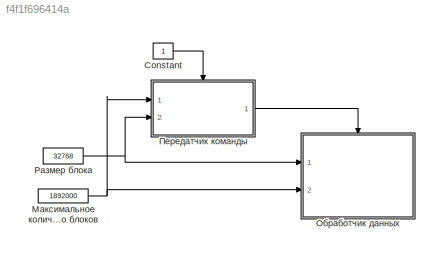
MODEL slx_f4f1f696414a
KIND model
CONFIG AbsTol = auto
CONFIG EnableMultiTasking = off
CONFIG FixedStep = 0.001
CONFIG MaxStep = 0.001
CONFIG MinStep = auto
CONFIG RelTol = 1e-3
CONFIG SampleTimeConstraint = Unconstrained
CONFIG SolverName = FixedStepDiscrete
CONFIG StartTime = 0.0
CONFIG StopTime = inf
BLOCK [Constant] Constant
BLOCK [Constant] Максимальное количество блоков
  OutDataTypeStr = uint32
  Value = 1892000
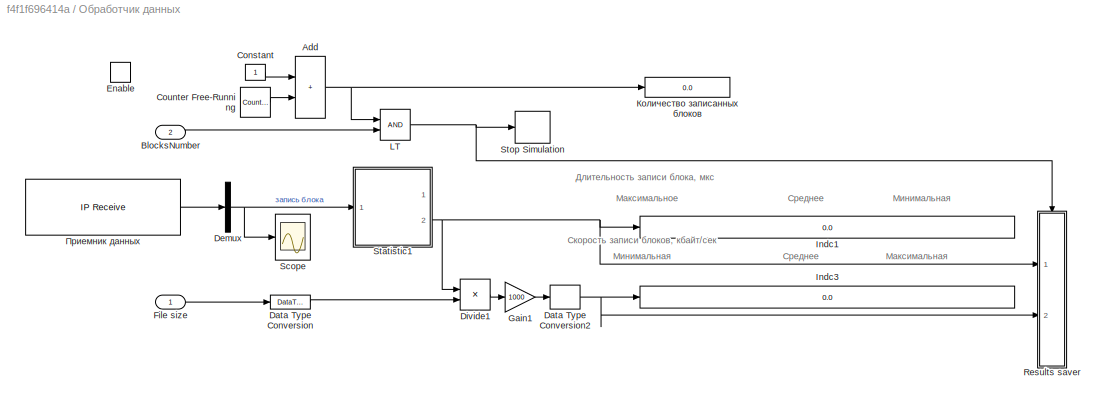
BLOCK [SubSystem] Обработчик данных
  Ports = [2, 0, 1]
  RequestExecContextInheritance = off
  TreatAsAtomicUnit = on
BLOCK [Display] Обработчик данных/ Indc1
  Decimation = 1
  Format = long
  Ports = [1]
BLOCK [Sum] Обработчик данных/Add
  IconShape = rectangular
  Ports = [2, 1]
BLOCK [Inport] Обработчик данных/BlocksNumber
  Port = 2
BLOCK [Constant] Обработчик данных/Constant
BLOCK [Reference] Обработчик данных/Counter Free-Running  REF=simulink/Sources/Counter
Free-Running
  Ports = [0, 1]
  SourceBlock = simulink/Sources/Counter\nFree-Running
  SourceProductBaseCode = SL
  SourceType = Counter Free-Running
BLOCK [DataTypeConversion] Обработчик данных/Data Type Conversion
  OutDataTypeStr = single
  RndMeth = Floor
  SaturateOnIntegerOverflow = off
BLOCK [DataTypeConversion] Обработчик данных/Data Type Conversion2
  OutDataTypeStr = int32
  RndMeth = Floor
  SaturateOnIntegerOverflow = off
BLOCK [Demux] Обработчик данных/Demux
  Outputs = 1
  Ports = [1, 1]
BLOCK [Product] Обработчик данных/Divide1
  Inputs = /*
  OutDataTypeStr = single
  Ports = [2, 1]
BLOCK [EnablePort] Обработчик данных/Enable
  Ports = []
BLOCK [Inport] Обработчик данных/File size
BLOCK [Gain] Обработчик данных/Gain1
  Gain = 1000
BLOCK [Display] Обработчик данных/Indc3
  Decimation = 1
  Format = long
  Ports = [1]
BLOCK [RelationalOperator] Обработчик данных/LT
  InputSameDT = off
  OutDataTypeStr = boolean
  Ports = [2, 1]
  RndMeth = Simplest
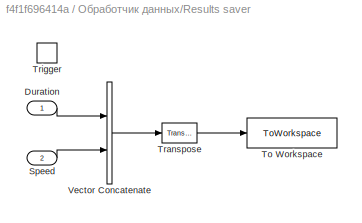
BLOCK [SubSystem] Обработчик данных/Results saver
  Ports = [2, 0, 0, 1]
  RequestExecContextInheritance = off
  TreatAsAtomicUnit = on
BLOCK [Inport] Обработчик данных/Results saver/Duration
BLOCK [Inport] Обработчик данных/Results saver/Speed
  Port = 2
BLOCK [ToWorkspace] Обработчик данных/Results saver/To Workspace
  FixptAsFi = on
  MaxDataPoints = inf
  Ports = [1]
  SampleTime = -1
  VariableName = Test_results
BLOCK [Reference] Обработчик данных/Results saver/Transpose  REF=matrix_library/Transpose
  Ports = [1, 1]
  SourceBlock = matrix_library/Transpose
  SourceProductBaseCode = SL
  SourceType = Transpose
BLOCK [TriggerPort] Обработчик данных/Results saver/Trigger
  InitialTriggerSignalState = zero
  Ports = []
  StatesWhenEnabling = held
  VariantControl = (inherit)
BLOCK [Concatenate] Обработчик данных/Results saver/Vector Concatenate
  ConcatenateDimension = 2
  Mode = Multidimensional array
  Ports = [2, 1]
BLOCK [Scope] Обработчик данных/Scope
  Floating = off
  NumInputPorts = 1
  Ports = [1]
  ScopeSpecificationString = Simulink.scopes.TimeScopeBlockCfg('CurrentConfiguration', extmgr.ConfigurationSet(extmgr.Configuration('Core','General UI',true),extmgr.Configuration('Core','Source UI',true),extmgr.Configuration('Sources','WiredSimulink',true,'DataLoggingVariableName','ScopeData1'),extmgr.Configuration('Visuals','Time Domain',true,'SerializedDisplays',{struct('MinYLimReal','-6754.25','MaxYLimReal','74768.25','YLa...<+1617ch>
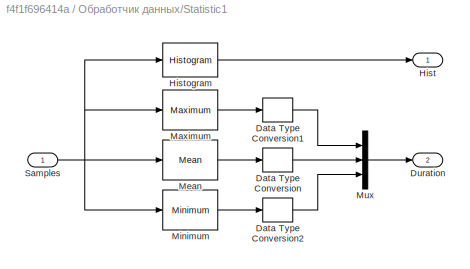
BLOCK [SubSystem] Обработчик данных/Statistic1
  Ports = [1, 2]
  RequestExecContextInheritance = off
BLOCK [DataTypeConversion] Обработчик данных/Statistic1/Data Type Conversion
  OutDataTypeStr = int32
  RndMeth = Floor
  SaturateOnIntegerOverflow = off
BLOCK [DataTypeConversion] Обработчик данных/Statistic1/Data Type Conversion1
  OutDataTypeStr = int32
  RndMeth = Floor
  SaturateOnIntegerOverflow = off
BLOCK [DataTypeConversion] Обработчик данных/Statistic1/Data Type Conversion2
  OutDataTypeStr = int32
  RndMeth = Floor
  SaturateOnIntegerOverflow = off
BLOCK [Outport] Обработчик данных/Statistic1/Duration
  Port = 2
BLOCK [Outport] Обработчик данных/Statistic1/Hist
BLOCK [Reference] Обработчик данных/Statistic1/Histogram  REF=dspstat3/Histogram
  Ports = [1, 1]
  SourceBlock = dspstat3/Histogram
  SourceProductBaseCode = DS
  SourceType = Histogram
  UserDataPersistent = on
BLOCK [Reference] Обработчик данных/Statistic1/Maximum  REF=dspstat3/Maximum
  Ports = [1, 1]
  SourceBlock = dspstat3/Maximum
  SourceProductBaseCode = DS
  SourceType = Maximum
  UserDataPersistent = on
BLOCK [Reference] Обработчик данных/Statistic1/Mean  REF=dspstat3/Mean
  Ports = [1, 1]
  SourceBlock = dspstat3/Mean
  SourceProductBaseCode = DS
  SourceType = Mean
  UserDataPersistent = on
BLOCK [Reference] Обработчик данных/Statistic1/Minimum  REF=dspstat3/Minimum
  Ports = [1, 1]
  SourceBlock = dspstat3/Minimum
  SourceProductBaseCode = DS
  SourceType = Minimum
  UserDataPersistent = on
BLOCK [Mux] Обработчик данных/Statistic1/Mux
  DisplayOption = bar
  Inputs = 3
  Ports = [3, 1]
BLOCK [Inport] Обработчик данных/Statistic1/Samples
BLOCK [Stop] Обработчик данных/Stop Simulation
BLOCK [Display] Обработчик данных/Количество записанных блоков
  Decimation = 1
  Format = long
  Ports = [1]
BLOCK [Reference] Обработчик данных/Приемник данных  REF=instrumentlib/TCP//IP Receive
  Ports = [0, 1]
  SourceBlock = instrumentlib/TCP//IP Receive
  SourceProductBaseCode = IC
  SourceType = instrument.system.TCPIPReceive
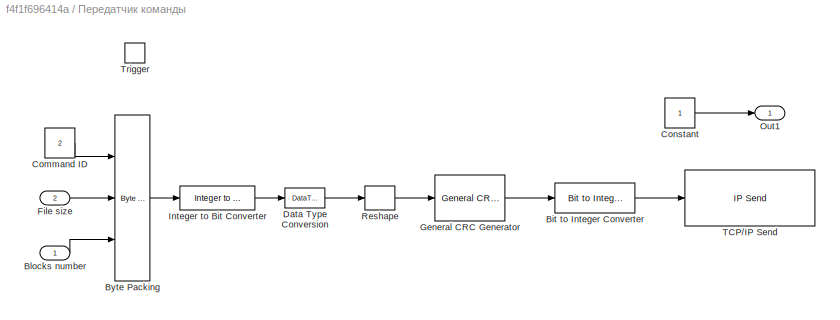
BLOCK [SubSystem] Передатчик команды
  Ports = [2, 1, 0, 1]
  RequestExecContextInheritance = off
  TreatAsAtomicUnit = on
BLOCK [Reference] Передатчик команды/Bit to Integer Converter  REF=simulink/Logic and Bit
Operations/Bit to Integer
Converter
  Ports = [1, 1]
  SourceBlock = simulink/Logic and Bit\nOperations/Bit to Integer\nConverter
  SourceProductBaseCode = SL
  SourceType = Bit to Integer Converter
BLOCK [Inport] Передатчик команды/Blocks number
BLOCK [Reference] Передатчик команды/Byte Packing  REF=slrealtimeutilitieslib/Byte Packing
  Ports = [3, 1]
  SourceBlock = slrealtimeutilitieslib/Byte Packing
  SourceProductBaseCode = XP
  SourceType = slrealtimebytepacking
BLOCK [Constant] Передатчик команды/Command ID
  OutDataTypeStr = uint32
  Value = 2
BLOCK [Constant] Передатчик команды/Constant
BLOCK [DataTypeConversion] Передатчик команды/Data Type Conversion
  OutDataTypeStr = boolean
  RndMeth = Floor
  SaturateOnIntegerOverflow = off
BLOCK [Inport] Передатчик команды/File size
  Port = 2
BLOCK [Reference] Передатчик команды/General CRC Generator  REF=commcrc2/General CRC
Generator
  Ports = [1, 1]
  SourceBlock = commcrc2/General CRC\nGenerator
  SourceProductBaseCode = CM
  SourceType = General CRC Generator
BLOCK [Reference] Передатчик команды/Integer to Bit Converter  REF=simulink/Logic and Bit
Operations/Integer to Bit
Converter
  Ports = [1, 1]
  SourceBlock = simulink/Logic and Bit\nOperations/Integer to Bit\nConverter
  SourceProductBaseCode = SL
  SourceType = Integer to Bit Converter
BLOCK [Outport] Передатчик команды/Out1
BLOCK [Reshape] Передатчик команды/Reshape
  OutputDimensionality = Customize
  OutputDimensions = [96,1]
  Ports = [1, 1]
BLOCK [Reference] Передатчик команды/TCP//IP Send  REF=instrumentlib/TCP//IP Send
  Ports = [1]
  SourceBlock = instrumentlib/TCP//IP Send
  SourceProductBaseCode = IC
  SourceType = instrument.system.TCPIPSend
BLOCK [TriggerPort] Передатчик команды/Trigger
  InitialTriggerSignalState = zero
  Ports = []
  StatesWhenEnabling = held
  VariantControl = (inherit)
BLOCK [Constant] Размер блока
  OutDataTypeStr = uint32
  Value = 32768
ANNOTATION Обработчик данных: Длительность записи блока, мкс
ANNOTATION Обработчик данных: Скорость записи блоков, кбайт/сек
ANNOTATION Обработчик данных: Максимальная
ANNOTATION Обработчик данных: Максимальное
ANNOTATION Обработчик данных: Минимальная
ANNOTATION Обработчик данных: Среднее
LINE Constant:1 -> Передатчик команды:trigger
NET Максимальное количество блоков:1 -> Обработчик данных:2, Передатчик команды:1
NET Обработчик данных/Add:1 -> Обработчик данных/LT:1, Обработчик данных/Количество записанных блоков:1
LINE Обработчик данных/BlocksNumber:1 -> Обработчик данных/LT:2
LINE Обработчик данных/Constant:1 -> Обработчик данных/Add:1
LINE Обработчик данных/Counter Free-Running:1 -> Обработчик данных/Add:2
NET Обработчик данных/Data Type Conversion2:1 -> Обработчик данных/Indc3:1, Обработчик данных/Results saver:2
LINE Обработчик данных/Data Type Conversion:1 -> Обработчик данных/Divide1:2
NET Обработчик данных/Demux:1 -> Обработчик данных/Scope:1, Обработчик данных/Statistic1:1
LINE Обработчик данных/Divide1:1 -> Обработчик данных/Gain1:1
LINE Обработчик данных/File size:1 -> Обработчик данных/Data Type Conversion:1
LINE Обработчик данных/Gain1:1 -> Обработчик данных/Data Type Conversion2:1
NET Обработчик данных/LT:1 -> Обработчик данных/Results saver:trigger, Обработчик данных/Stop Simulation:1
LINE Обработчик данных/Results saver/Duration:1 -> Обработчик данных/Results saver/Vector Concatenate:1
LINE Обработчик данных/Results saver/Speed:1 -> Обработчик данных/Results saver/Vector Concatenate:2
LINE Обработчик данных/Results saver/Transpose:1 -> Обработчик данных/Results saver/To Workspace:1
LINE Обработчик данных/Results saver/Vector Concatenate:1 -> Обработчик данных/Results saver/Transpose:1
LINE Обработчик данных/Statistic1/Data Type Conversion1:1 -> Обработчик данных/Statistic1/Mux:1
LINE Обработчик данных/Statistic1/Data Type Conversion2:1 -> Обработчик данных/Statistic1/Mux:3
LINE Обработчик данных/Statistic1/Data Type Conversion:1 -> Обработчик данных/Statistic1/Mux:2
LINE Обработчик данных/Statistic1/Histogram:1 -> Обработчик данных/Statistic1/Hist:1
LINE Обработчик данных/Statistic1/Maximum:1 -> Обработчик данных/Statistic1/Data Type Conversion1:1
LINE Обработчик данных/Statistic1/Mean:1 -> Обработчик данных/Statistic1/Data Type Conversion:1
LINE Обработчик данных/Statistic1/Minimum:1 -> Обработчик данных/Statistic1/Data Type Conversion2:1
LINE Обработчик данных/Statistic1/Mux:1 -> Обработчик данных/Statistic1/Duration:1
NET Обработчик данных/Statistic1/Samples:1 -> Обработчик данных/Statistic1/Histogram:1, Обработчик данных/Statistic1/Maximum:1, Обработчик данных/Statistic1/Mean:1, Обработчик данных/Statistic1/Minimum:1
NET Обработчик данных/Statistic1:2 -> Обработчик данных/ Indc1:1, Обработчик данных/Divide1:1, Обработчик данных/Results saver:1
LINE Обработчик данных/Приемник данных:1 -> Обработчик данных/Demux:1
LINE Передатчик команды/Bit to Integer Converter:1 -> Передатчик команды/TCP//IP Send:1
LINE Передатчик команды/Blocks number:1 -> Передатчик команды/Byte Packing:3
LINE Передатчик команды/Byte Packing:1 -> Передатчик команды/Integer to Bit Converter:1
LINE Передатчик команды/Command ID:1 -> Передатчик команды/Byte Packing:1
LINE Передатчик команды/Constant:1 -> Передатчик команды/Out1:1
LINE Передатчик команды/Data Type Conversion:1 -> Передатчик команды/Reshape:1
LINE Передатчик команды/File size:1 -> Передатчик команды/Byte Packing:2
LINE Передатчик команды/General CRC Generator:1 -> Передатчик команды/Bit to Integer Converter:1
LINE Передатчик команды/Integer to Bit Converter:1 -> Передатчик команды/Data Type Conversion:1
LINE Передатчик команды/Reshape:1 -> Передатчик команды/General CRC Generator:1
LINE Передатчик команды:1 -> Обработчик данных:enable
NET Размер блока:1 -> Обработчик данных:1, Передатчик команды:2
note: NET lines group one-source signal fan-out (src -> all destinations, sorted); 1:1 wires keep LINE
